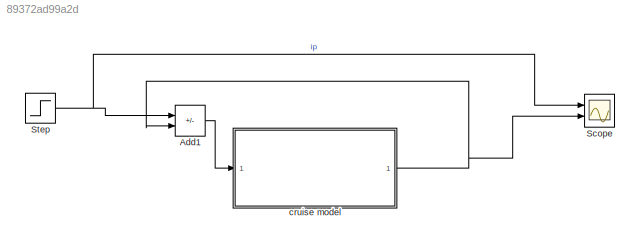
MODEL slx_89372ad99a2d
KIND model
CONFIG AbsTol = auto
CONFIG EnableMultiTasking = off
CONFIG FixedStep = auto
CONFIG MaxStep = auto
CONFIG MinStep = auto
CONFIG RelTol = 1e-3
CONFIG SampleTimeConstraint = Unconstrained
CONFIG SolverName = VariableStepAuto
CONFIG StartTime = 0.0
CONFIG StopTime = 100
BLOCK [Sum] Add1
  IconShape = rectangular
  Inputs = +-
  Ports = [2, 1]
BLOCK [Scope] Scope
  Floating = off
  NumInputPorts = 2
  Ports = [2]
  ScopeSpecificationString = Simulink.scopes.TimeScopeBlockCfg('CurrentConfiguration', extmgr.ConfigurationSet(extmgr.Configuration('Core','General UI',true),extmgr.Configuration('Core','Source UI',true),extmgr.Configuration('Sources','WiredSimulink',true),extmgr.Configuration('Visuals','Time Domain',true,'SerializedDisplays',{struct('MinYLimReal','-70.48728','MaxYLimReal','634.38548','YLabelReal','','MinYLimMag','0.00000','M...<+1470ch>
BLOCK [Step] Step
  After = 500
  Before = 1
  SampleTime = 0
  Time = 0
BLOCK [ModelReference] cruise model
  ModelNameDialog = cruise_model
  ModelReferenceVersion = 1.25
  Ports = [1, 1]
LINE Add1:1 -> cruise model:1
NET Step:1 -> Add1:1, Scope:1
NET cruise model:1 -> Add1:2, Scope:2
note: NET lines group one-source signal fan-out (src -> all destinations, sorted); 1:1 wires keep LINE
